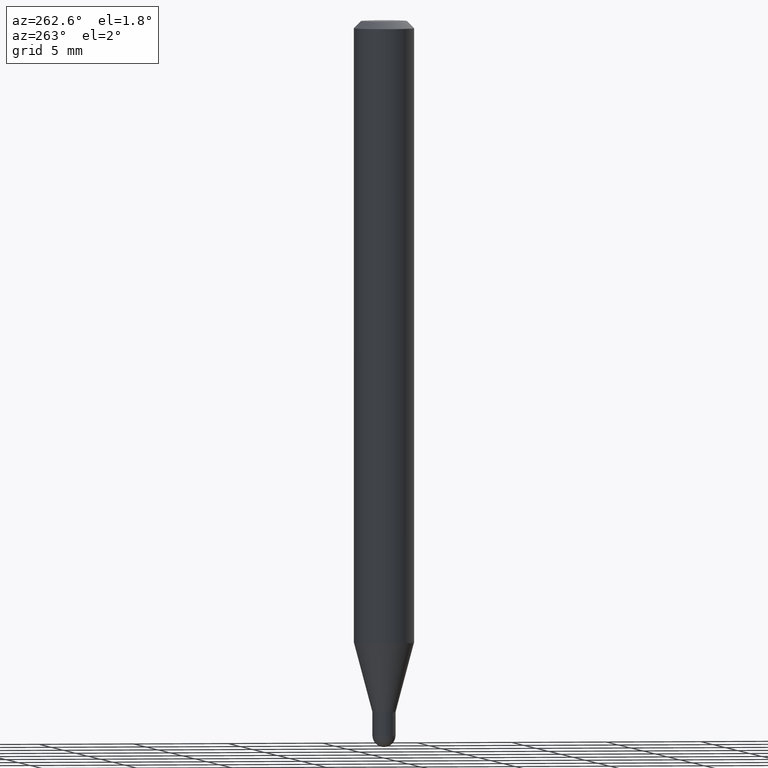
[diagram: clean part render]
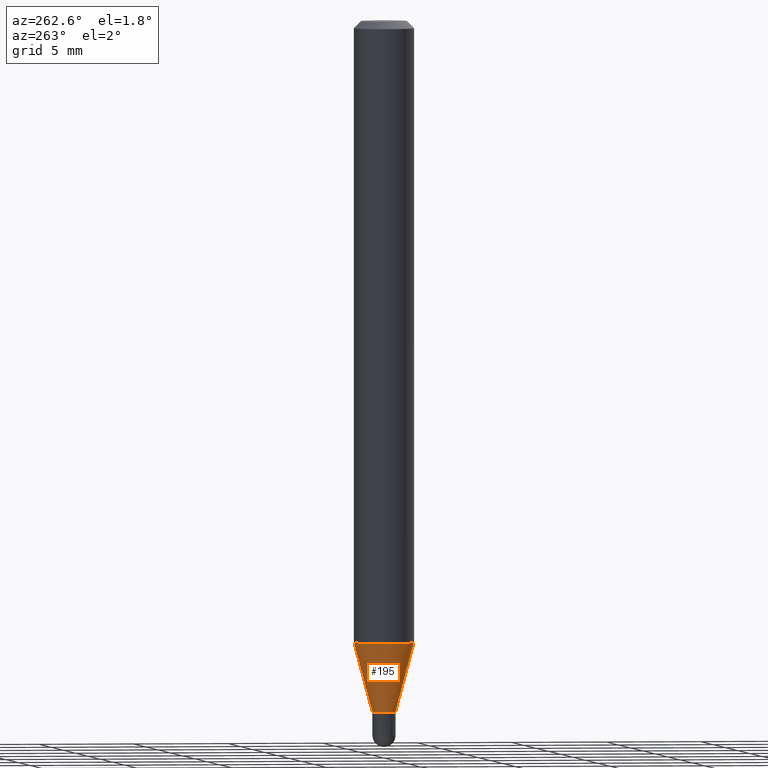
[diagram: same view with one face highlighted and labeled with its STEP entity id]
A machine part, auxiliary view. The second image highlights one B-rep face of the part: STEP entity #195.
In plain terms, the highlighted conical surface has half-angle 15 deg.
Its self-contained STEP definition (entity closure, byte-faithful):
#19 = ORIENTED_EDGE ( 'NONE', *, *, #357, .F. ) ;
#48 = EDGE_CURVE ( 'NONE', #323, #79, #414, .T. ) ;
#79 = VERTEX_POINT ( 'NONE', #425 ) ;
#82 = CARTESIAN_POINT ( 'NONE',  ( 3.073097332162762918E-16, 0.02399999999999493164, -1.428000000000000158 ) ) ;
#124 = AXIS2_PLACEMENT_3D ( 'NONE', #205, #280, #235 ) ;
#126 = DIRECTION ( 'NONE',  ( -2.445464073693033846E-29, 3.491488116041193257E-15, 1.000000000000000000 ) ) ;
#140 = EDGE_CURVE ( 'NONE', #79, #253, #164, .T. ) ;
#158 = CARTESIAN_POINT ( 'NONE',  ( 3.140748744646054183E-29, -4.484174204547925592E-15, -1.284316043908602989 ) ) ;
#164 = LINE ( 'NONE', #231, #203 ) ;
#188 = VERTEX_POINT ( 'NONE', #430 ) ;
#193 = ORIENTED_EDGE ( 'NONE', *, *, #48, .T. ) ;
#195 = ADVANCED_FACE ( 'NONE', ( #359 ), #344, .T. ) ;
#203 = VECTOR ( 'NONE', #361, 39.37007874015748854 ) ;
#205 = CARTESIAN_POINT ( 'NONE',  ( 3.492122697233653173E-29, -4.985845029706825030E-15, -1.428000000000000158 ) ) ;
#224 = CARTESIAN_POINT ( 'NONE',  ( 3.492122697233653173E-29, -4.985845029706825030E-15, -1.428000000000000158 ) ) ;
#231 = CARTESIAN_POINT ( 'NONE',  ( -1.675911042644348836E-16, -0.02400000000000490283, -1.428000000000000158 ) ) ;
#235 = DIRECTION ( 'NONE',  ( -6.982962677686266711E-15, -1.000000000000000000, 0.000000000000000000 ) ) ;
#238 = AXIS2_PLACEMENT_3D ( 'NONE', #158, #126, #472 ) ;
#253 = VERTEX_POINT ( 'NONE', #319 ) ;
#256 = LINE ( 'NONE', #423, #428 ) ;
#280 = DIRECTION ( 'NONE',  ( -2.445464073693033846E-29, 3.491488116041193257E-15, 1.000000000000000000 ) ) ;
#319 = CARTESIAN_POINT ( 'NONE',  ( -4.364351673553603615E-16, -0.06250000000000449640, -1.284316043908602767 ) ) ;
#323 = VERTEX_POINT ( 'NONE', #82 ) ;
#327 = CIRCLE ( 'NONE', #238, 0.06250000000000000000 ) ;
#343 = DIRECTION ( 'NONE',  ( 1.839019923739652775E-15, 0.2588190451025323413, 0.9659258262890650926 ) ) ;
#344 = CONICAL_SURFACE ( 'NONE', #124, 0.02399999999999991723, 0.2617993877991579010 ) ;
#350 = DIRECTION ( 'NONE',  ( -6.982962677686266711E-15, -1.000000000000000000, 0.000000000000000000 ) ) ;
#357 = EDGE_CURVE ( 'NONE', #188, #253, #327, .T. ) ;
#359 = FACE_OUTER_BOUND ( 'NONE', #463, .T. ) ;
#361 = DIRECTION ( 'NONE',  ( -1.807323732225381810E-15, -0.2588190451025255689, 0.9659258262890669799 ) ) ;
#383 = ORIENTED_EDGE ( 'NONE', *, *, #506, .F. ) ;
#410 = ORIENTED_EDGE ( 'NONE', *, *, #140, .T. ) ;
#414 = CIRCLE ( 'NONE', #438, 0.02399999999999991723 ) ;
#423 = CARTESIAN_POINT ( 'NONE',  ( 1.705302565824583390E-16, 0.02399999999999493164, -1.428000000000000158 ) ) ;
#425 = CARTESIAN_POINT ( 'NONE',  ( -1.675911042644348836E-16, -0.02400000000000490283, -1.428000000000000158 ) ) ;
#428 = VECTOR ( 'NONE', #343, 39.37007874015748143 ) ;
#430 = CARTESIAN_POINT ( 'NONE',  ( 4.440892098500937762E-16, 0.06249999999999550360, -1.284316043908603211 ) ) ;
#438 = AXIS2_PLACEMENT_3D ( 'NONE', #224, #460, #350 ) ;
#460 = DIRECTION ( 'NONE',  ( -2.445464073693033846E-29, 3.491488116041193257E-15, 1.000000000000000000 ) ) ;
#463 = EDGE_LOOP ( 'NONE', ( #383, #193, #410, #19 ) ) ;
#472 = DIRECTION ( 'NONE',  ( -6.982962677686265922E-15, -1.000000000000000000, 4.370956789862821150E-15 ) ) ;
#506 = EDGE_CURVE ( 'NONE', #323, #188, #256, .T. ) ;